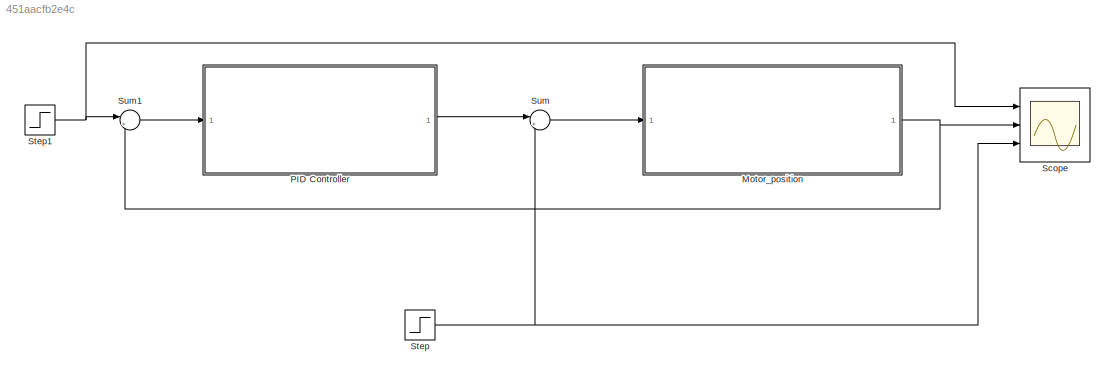
MODEL slx_451aacfb2e4c
KIND model
CONFIG AbsTol = auto
CONFIG EnableMultiTasking = off
CONFIG FixedStep = auto
CONFIG MaxStep = auto
CONFIG MinStep = auto
CONFIG RelTol = 1e-3
CONFIG SampleTimeConstraint = Unconstrained
CONFIG Solver = VariableStepAuto
CONFIG SolverName = VariableStepAuto
CONFIG StartTime = 0.0
CONFIG StopTime = 10.0
WORKSPACE source: mxarray member
WORKSPACE J = 3.2284e-06
WORKSPACE Ke = 0.0274
WORKSPACE Kt = 0.0274
WORKSPACE L = 2.75e-06
WORKSPACE R = 4
WORKSPACE b = 3.5077e-06
WORKSPACE kd = 120
WORKSPACE ki = 200
WORKSPACE kp = 350
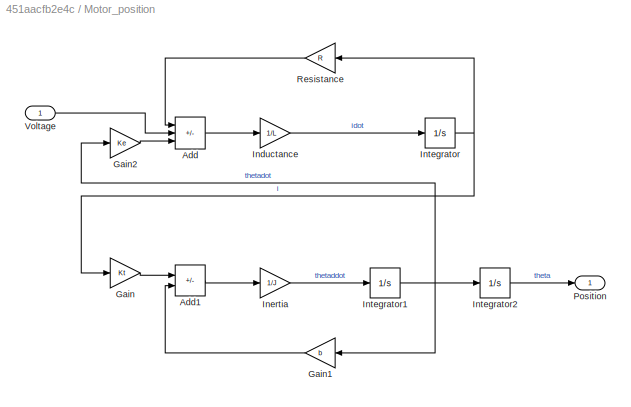
BLOCK [SubSystem] Motor_position
  Ports = [1, 1]
  RequestExecContextInheritance = off
BLOCK [Sum] Motor_position/Add
  IconShape = rectangular
  Inputs = -+-
  Ports = [3, 1]
BLOCK [Sum] Motor_position/Add1
  IconShape = rectangular
  Inputs = +-
  Ports = [2, 1]
BLOCK [Gain] Motor_position/Gain
  Gain = Kt
BLOCK [Gain] Motor_position/Gain1
  Gain = b
  NameLocation = top
BLOCK [Gain] Motor_position/Gain2
  Gain = Ke
BLOCK [Gain] Motor_position/Inductance
  Gain = 1/L
BLOCK [Gain] Motor_position/Inertia
  Gain = 1/J
BLOCK [Integrator] Motor_position/Integrator
  Ports = [1, 1]
BLOCK [Integrator] Motor_position/Integrator1
  Ports = [1, 1]
BLOCK [Integrator] Motor_position/Integrator2
  Ports = [1, 1]
BLOCK [Outport] Motor_position/Position
BLOCK [Gain] Motor_position/Resistance
  Gain = R
  NameLocation = top
BLOCK [Inport] Motor_position/Voltage
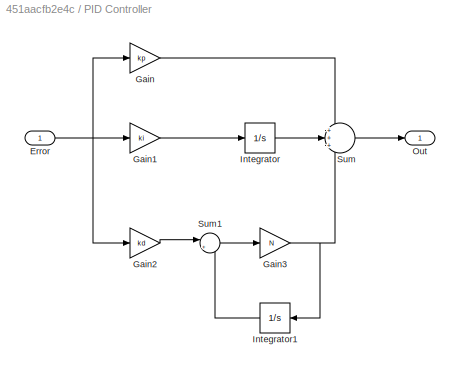
BLOCK [SubSystem] PID Controller
  Ports = [1, 1]
  RequestExecContextInheritance = off
BLOCK [Inport] PID Controller/Error
BLOCK [Gain] PID Controller/Gain
  Gain = kp
BLOCK [Gain] PID Controller/Gain1
  Gain = ki
BLOCK [Gain] PID Controller/Gain2
  Gain = kd
BLOCK [Gain] PID Controller/Gain3
  Gain = N
BLOCK [Integrator] PID Controller/Integrator
  Ports = [1, 1]
BLOCK [Integrator] PID Controller/Integrator1
  NameLocation = top
  Ports = [1, 1]
BLOCK [Outport] PID Controller/Out
BLOCK [Sum] PID Controller/Sum
  Inputs = +++
  Ports = [3, 1]
BLOCK [Sum] PID Controller/Sum1
  Inputs = |+-
  Ports = [2, 1]
BLOCK [Scope] Scope
  Floating = off
  NumInputPorts = 3
  Ports = [3]
  ScopeSpecificationString = Simulink.scopes.TimeScopeBlockCfg('CurrentConfiguration', extmgr.ConfigurationSet(extmgr.Configuration('Core','General UI',true),extmgr.Configuration('Core','Source UI',true),extmgr.Configuration('Sources','WiredSimulink',true),extmgr.Configuration('Visuals','Time Domain',true,'SerializedDisplays',{struct('MinYLimReal','-0.125','MaxYLimReal','1.125','YLabelReal','','MinYLimMag','0.00000','MaxYLimM...<+2672ch>
BLOCK [Step] Step
  SampleTime = 0
BLOCK [Step] Step1
  SampleTime = 0
BLOCK [Sum] Sum
  Inputs = |++
  Ports = [2, 1]
BLOCK [Sum] Sum1
  Inputs = |+-
  Ports = [2, 1]
LINE Motor_position/Add1:1 -> Motor_position/Inertia:1
LINE Motor_position/Add:1 -> Motor_position/Inductance:1
LINE Motor_position/Gain1:1 -> Motor_position/Add1:2
LINE Motor_position/Gain2:1 -> Motor_position/Add:3
LINE Motor_position/Gain:1 -> Motor_position/Add1:1
LINE Motor_position/Inductance:1 -> Motor_position/Integrator:1
LINE Motor_position/Inertia:1 -> Motor_position/Integrator1:1
NET Motor_position/Integrator1:1 -> Motor_position/Gain1:1, Motor_position/Gain2:1, Motor_position/Integrator2:1
LINE Motor_position/Integrator2:1 -> Motor_position/Position:1
NET Motor_position/Integrator:1 -> Motor_position/Gain:1, Motor_position/Resistance:1
LINE Motor_position/Resistance:1 -> Motor_position/Add:1
LINE Motor_position/Voltage:1 -> Motor_position/Add:2
NET Motor_position:1 -> Scope:2, Sum1:2
NET PID Controller/Error:1 -> PID Controller/Gain1:1, PID Controller/Gain2:1, PID Controller/Gain:1
LINE PID Controller/Gain1:1 -> PID Controller/Integrator:1
LINE PID Controller/Gain2:1 -> PID Controller/Sum1:1
NET PID Controller/Gain3:1 -> PID Controller/Integrator1:1, PID Controller/Sum:3
LINE PID Controller/Gain:1 -> PID Controller/Sum:1
LINE PID Controller/Integrator1:1 -> PID Controller/Sum1:2
LINE PID Controller/Integrator:1 -> PID Controller/Sum:2
LINE PID Controller/Sum1:1 -> PID Controller/Gain3:1
LINE PID Controller/Sum:1 -> PID Controller/Out:1
LINE PID Controller:1 -> Sum:1
NET Step1:1 -> Scope:1, Sum1:1
NET Step:1 -> Scope:3, Sum:2
LINE Sum1:1 -> PID Controller:1
LINE Sum:1 -> Motor_position:1
note: NET lines group one-source signal fan-out (src -> all destinations, sorted); 1:1 wires keep LINE
